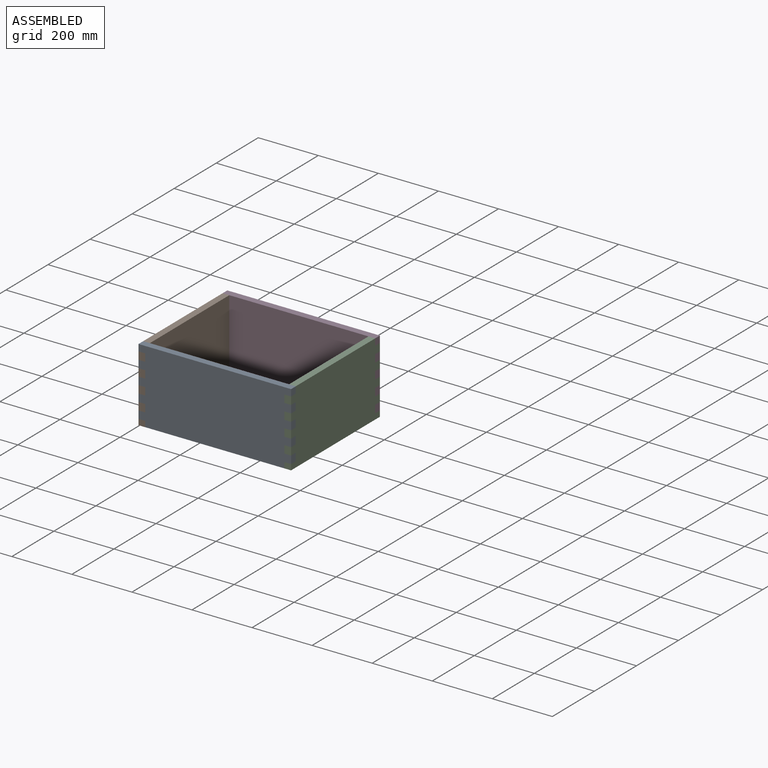
[diagram: assembled view]
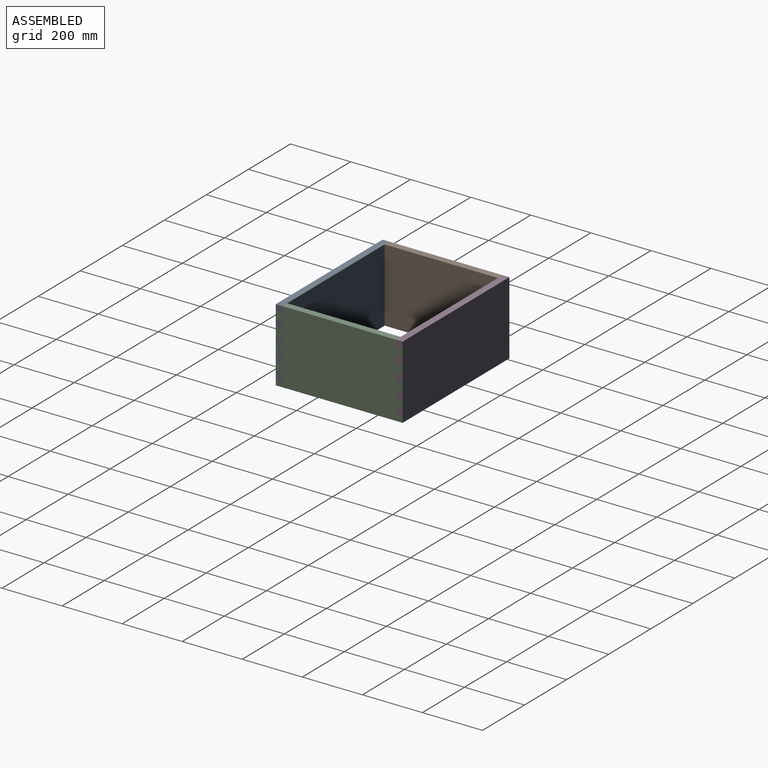
[diagram: assembled view, second angle]
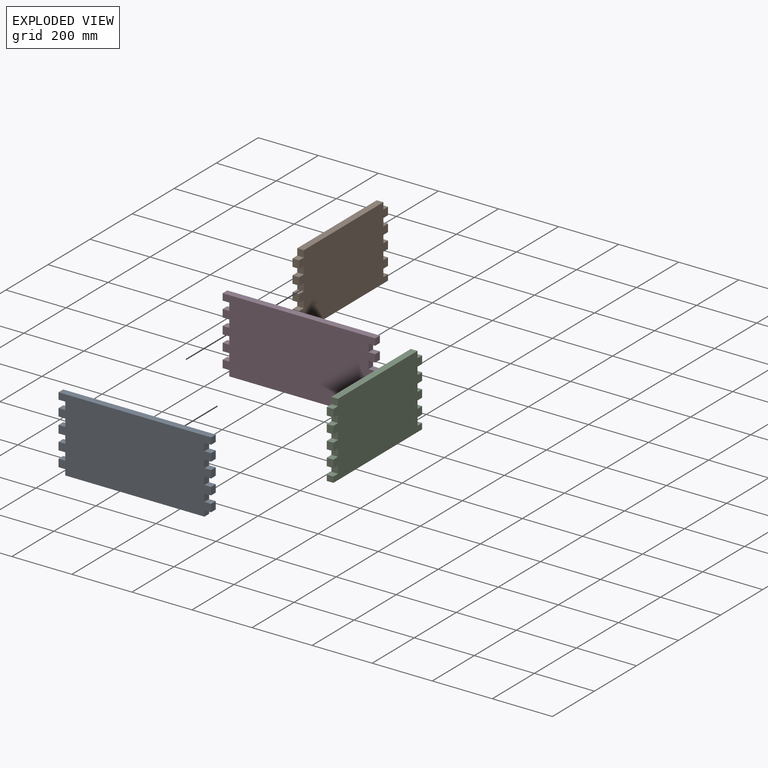
[diagram: exploded view]
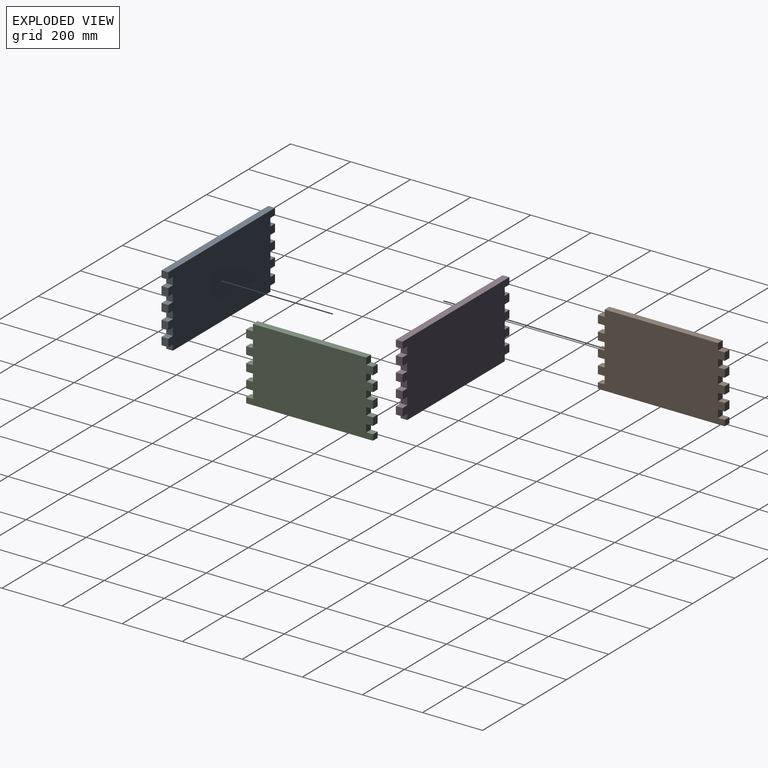
[diagram: exploded view, second angle]
ASSEMBLY  parts=4 mates=9
PART A: 42 faces, bbox 508x22.2x244.5 mm
  f0: plane 25.4x22.23mm, normal (1,0,0), area 564.5mm2, adj f1,f2,f35,f40
  f1: plane 508x244.48mm, normal (0,-1,0), area 118830.4mm2, adj f0,f3,f4,f5,f6,f7,f8,f9
  f2: plane 508x244.48mm, normal (0,1,0), area 118830.4mm2, adj f0,f3,f4,f5,f6,f7,f8,f9
  f3: plane 25.4x22.23mm, normal (-1,0,0), area 564.5mm2, adj f1,f2,f31,f38
  f4: plane 25.4x22.23mm, normal (1,0,0), area 564.5mm2, adj f1,f2,f29,f34
  f5: plane 25.4x22.23mm, normal (-1,0,0), area 564.5mm2, adj f1,f2,f25,f32
  f6: plane 25.4x22.23mm, normal (1,0,0), area 564.5mm2, adj f1,f2,f23,f28
  f7: plane 25.4x22.23mm, normal (-1,0,0), area 564.5mm2, adj f1,f2,f19,f26
  f8: plane 25.4x22.23mm, normal (1,0,0), area 564.5mm2, adj f1,f2,f16,f22
  f9: plane 25.4x22.23mm, normal (-1,0,0), area 564.5mm2, adj f1,f2,f14,f20
  f10: plane 463.55x22.23mm, normal (0,0,-1), area 10302.4mm2, adj f1,f2,f15,f17
  f11: plane 22.23x22.23mm, normal (-1,0,0), area 494mm2, adj f1,f2,f13,f37
  f12: plane 22.23x22.23mm, normal (1,0,0), area 494mm2, adj f1,f2,f13,f41
  f13: plane 508x22.23mm, normal (0,0,1), area 11290.3mm2, adj f1,f2,f11,f12
  f14: plane 22.23x22.23mm, normal (0,0,-1), area 494mm2, adj f1,f2,f9,f15
  f15: plane 22.23x19.05mm, normal (-1,0,0), area 423.4mm2, adj f1,f2,f10,f14
  f16: plane 22.23x22.23mm, normal (0,0,-1), area 494mm2, adj f1,f2,f8,f17
  f17: plane 22.23x19.05mm, normal (1,0,0), area 423.4mm2, adj f1,f2,f10,f16
  f18: plane 25.4x22.23mm, normal (-1,0,0), area 564.5mm2, adj f1,f2,f19,f20
  f19: plane 22.23x22.23mm, normal (0,0,-1), area 494mm2, adj f1,f2,f7,f18
  f20: plane 22.23x22.23mm, normal (0,0,1), area 494mm2, adj f1,f2,f9,f18
  f21: plane 25.4x22.23mm, normal (1,0,0), area 564.5mm2, adj f1,f2,f22,f23
  f22: plane 22.23x22.23mm, normal (0,0,1), area 494mm2, adj f1,f2,f8,f21
  f23: plane 22.23x22.23mm, normal (0,0,-1), area 494mm2, adj f1,f2,f6,f21
  f24: plane 25.4x22.23mm, normal (-1,0,0), area 564.5mm2, adj f1,f2,f25,f26
  f25: plane 22.23x22.23mm, normal (0,0,-1), area 494mm2, adj f1,f2,f5,f24
  f26: plane 22.23x22.23mm, normal (0,0,1), area 494mm2, adj f1,f2,f7,f24
  f27: plane 25.4x22.23mm, normal (1,0,0), area 564.5mm2, adj f1,f2,f28,f29
  f28: plane 22.23x22.23mm, normal (0,0,1), area 494mm2, adj f1,f2,f6,f27
  f29: plane 22.23x22.23mm, normal (0,0,-1), area 494mm2, adj f1,f2,f4,f27
  f30: plane 25.4x22.23mm, normal (-1,0,0), area 564.5mm2, adj f1,f2,f31,f32
  f31: plane 22.23x22.23mm, normal (0,0,-1), area 494mm2, adj f1,f2,f3,f30
  f32: plane 22.23x22.23mm, normal (0,0,1), area 494mm2, adj f1,f2,f5,f30
  f33: plane 25.4x22.23mm, normal (1,0,0), area 564.5mm2, adj f1,f2,f34,f35
  f34: plane 22.23x22.23mm, normal (0,0,1), area 494mm2, adj f1,f2,f4,f33
  f35: plane 22.23x22.23mm, normal (0,0,-1), area 494mm2, adj f0,f1,f2,f33
  f36: plane 25.4x22.23mm, normal (-1,0,0), area 564.5mm2, adj f1,f2,f37,f38
  f37: plane 22.23x22.23mm, normal (0,0,-1), area 494mm2, adj f1,f2,f11,f36
  f38: plane 22.23x22.23mm, normal (0,0,1), area 494mm2, adj f1,f2,f3,f36
  f39: plane 25.4x22.23mm, normal (1,0,0), area 564.5mm2, adj f1,f2,f40,f41
  f40: plane 22.23x22.23mm, normal (0,0,1), area 494mm2, adj f0,f1,f2,f39
  f41: plane 22.23x22.23mm, normal (0,0,-1), area 494mm2, adj f1,f2,f12,f39
PART B: 42 faces, bbox 422.3x22.2x244.5 mm
  f0: plane 25.4x22.23mm, normal (1,0,0), area 564.5mm2, adj f5,f6,f35,f41
  f1: plane 25.4x22.23mm, normal (-1,0,0), area 564.5mm2, adj f5,f6,f32,f38
  f2: plane 377.83x22.23mm, normal (0,0,1), area 8397.2mm2, adj f5,f6,f39,f40
  f3: plane 25.4x22.23mm, normal (1,0,0), area 564.5mm2, adj f5,f6,f29,f36
  f4: plane 25.4x22.23mm, normal (-1,0,0), area 564.5mm2, adj f5,f6,f26,f33
  f5: plane 422.28x244.48mm, normal (0,1,0), area 97731.7mm2, adj f0,f1,f2,f3,f4,f7,f8,f9
  f6: plane 422.28x244.48mm, normal (0,-1,0), area 97731.7mm2, adj f0,f1,f2,f3,f4,f7,f8,f9
  f7: plane 25.4x22.23mm, normal (1,0,0), area 564.5mm2, adj f5,f6,f23,f30
  f8: plane 25.4x22.23mm, normal (-1,0,0), area 564.5mm2, adj f5,f6,f20,f27
  f9: plane 25.4x22.23mm, normal (1,0,0), area 564.5mm2, adj f5,f6,f17,f24
  f10: plane 25.4x22.23mm, normal (-1,0,0), area 564.5mm2, adj f5,f6,f14,f21
  f11: plane 22.23x19.05mm, normal (1,0,0), area 423.4mm2, adj f5,f6,f13,f18
  f12: plane 22.23x19.05mm, normal (-1,0,0), area 423.4mm2, adj f5,f6,f13,f15
  f13: plane 422.28x22.23mm, normal (0,0,-1), area 9385.1mm2, adj f5,f6,f11,f12
  f14: plane 22.23x22.23mm, normal (0,0,-1), area 494mm2, adj f5,f6,f10,f16
  f15: plane 22.23x22.23mm, normal (0,0,1), area 494mm2, adj f5,f6,f12,f16
  f16: plane 25.4x22.23mm, normal (-1,0,0), area 564.5mm2, adj f5,f6,f14,f15
  f17: plane 22.23x22.23mm, normal (0,0,-1), area 494mm2, adj f5,f6,f9,f19
  f18: plane 22.23x22.23mm, normal (0,0,1), area 494mm2, adj f5,f6,f11,f19
  f19: plane 25.4x22.23mm, normal (1,0,0), area 564.5mm2, adj f5,f6,f17,f18
  f20: plane 22.23x22.23mm, normal (0,0,-1), area 494mm2, adj f5,f6,f8,f22
  f21: plane 22.23x22.23mm, normal (0,0,1), area 494mm2, adj f5,f6,f10,f22
  f22: plane 25.4x22.23mm, normal (-1,0,0), area 564.5mm2, adj f5,f6,f20,f21
  f23: plane 22.23x22.23mm, normal (0,0,-1), area 494mm2, adj f5,f6,f7,f25
  f24: plane 22.23x22.23mm, normal (0,0,1), area 494mm2, adj f5,f6,f9,f25
  f25: plane 25.4x22.23mm, normal (1,0,0), area 564.5mm2, adj f5,f6,f23,f24
  f26: plane 22.23x22.23mm, normal (0,0,-1), area 494mm2, adj f4,f5,f6,f28
  f27: plane 22.23x22.23mm, normal (0,0,1), area 494mm2, adj f5,f6,f8,f28
  f28: plane 25.4x22.23mm, normal (-1,0,0), area 564.5mm2, adj f5,f6,f26,f27
  f29: plane 22.23x22.23mm, normal (0,0,-1), area 494mm2, adj f3,f5,f6,f31
  f30: plane 22.23x22.23mm, normal (0,0,1), area 494mm2, adj f5,f6,f7,f31
  f31: plane 25.4x22.23mm, normal (1,0,0), area 564.5mm2, adj f5,f6,f29,f30
  f32: plane 22.23x22.23mm, normal (0,0,-1), area 494mm2, adj f1,f5,f6,f34
  f33: plane 22.23x22.23mm, normal (0,0,1), area 494mm2, adj f4,f5,f6,f34
  f34: plane 25.4x22.23mm, normal (-1,0,0), area 564.5mm2, adj f5,f6,f32,f33
  f35: plane 22.23x22.23mm, normal (0,0,-1), area 494mm2, adj f0,f5,f6,f37
  f36: plane 22.23x22.23mm, normal (0,0,1), area 494mm2, adj f3,f5,f6,f37
  f37: plane 25.4x22.23mm, normal (1,0,0), area 564.5mm2, adj f5,f6,f35,f36
  f38: plane 22.23x22.23mm, normal (0,0,1), area 494mm2, adj f1,f5,f6,f39
  f39: plane 22.23x22.23mm, normal (-1,0,0), area 494mm2, adj f2,f5,f6,f38
  f40: plane 22.23x22.23mm, normal (1,0,0), area 494mm2, adj f2,f5,f6,f41
  f41: plane 22.23x22.23mm, normal (0,0,1), area 494mm2, adj f0,f5,f6,f40
PART C: same geometry as B
PART D: same geometry as A
PLACE A t=(-190,73.94,-50.09)mm fixed
PLACE B rot(axis=(0,0,1),90deg) t=(-167.78,73.94,-50.09)mm
PLACE C rot(axis=(0,0,1),90deg) t=(318,73.94,-50.09)mm
PLACE D rot(axis=(-1,0,0),0deg) t=(-190,473.99,-50.09)mm
MATE planar B.f12 <-> A.f1  axis (0,-1,0) through (-167.78,73.94,-31.04)mm
MATE planar B.f6 <-> A.f15  axis (1,0,0) through (-167.78,73.94,-50.09)mm
MATE planar C.f5 <-> A.f39  axis (-1,0,0) through (295.77,285.07,71.69)mm
MATE planar C.f6 <-> D.f12  axis (1,0,0) through (318,473.99,172.16)mm
MATE planar A.f2 <-> C.f39  axis (0,1,0) through (318,96.16,194.39)mm
MATE planar C.f2 <-> D.f13  axis (0,0,1) through (318,473.99,194.39)mm
MATE planar D.f1 <-> C.f40  axis (0,-1,0) through (318,473.99,194.39)mm
MATE planar C.f41 <-> A.f41  axis (0,0,1) through (306.89,485.1,172.16)mm
MATE planar B.f15 <-> A.f14  axis (0,0,1) through (-190,73.94,-31.04)mm
